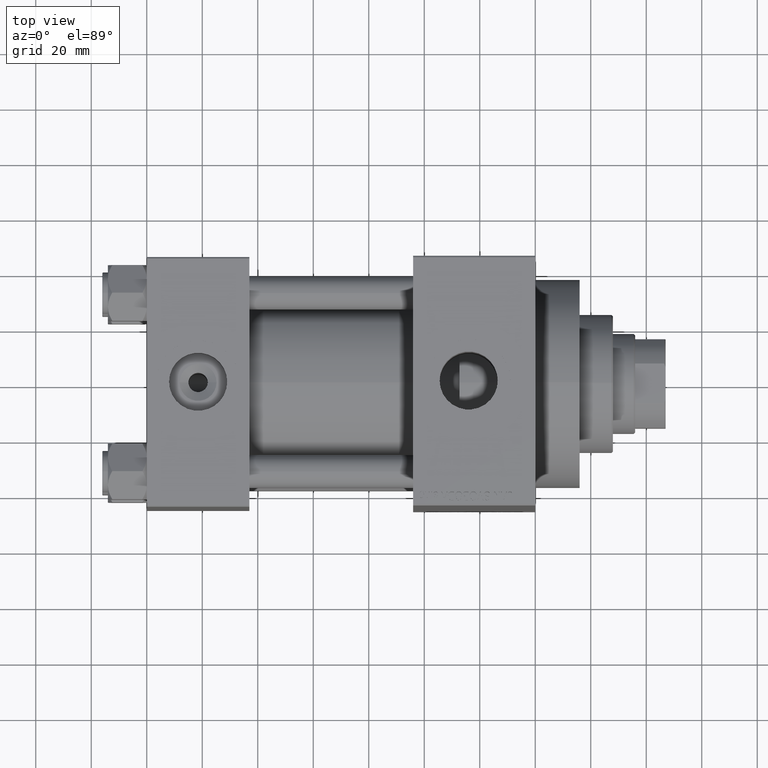
[diagram: clean part render]
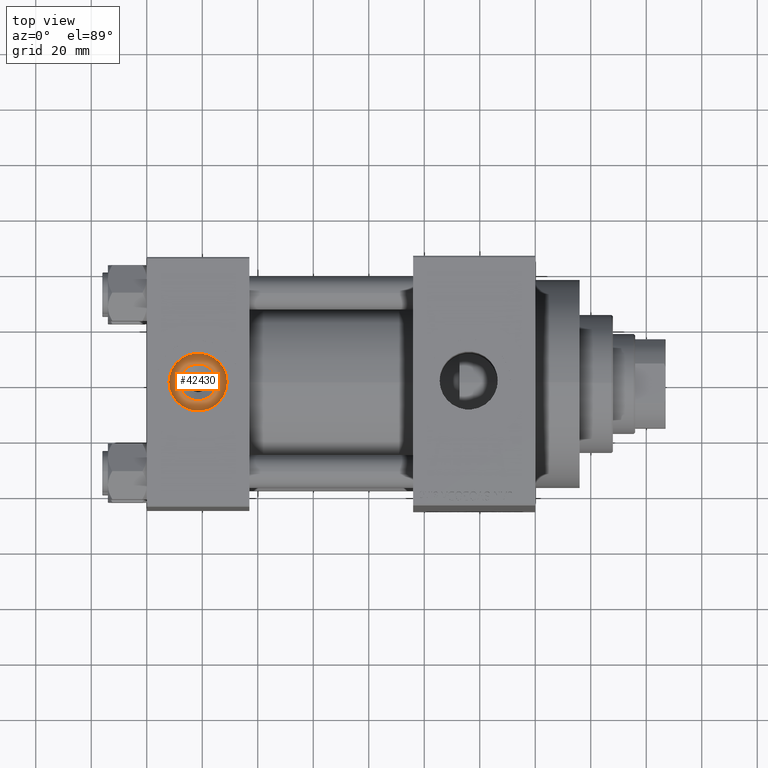
[diagram: same view with one face highlighted and labeled with its STEP entity id]
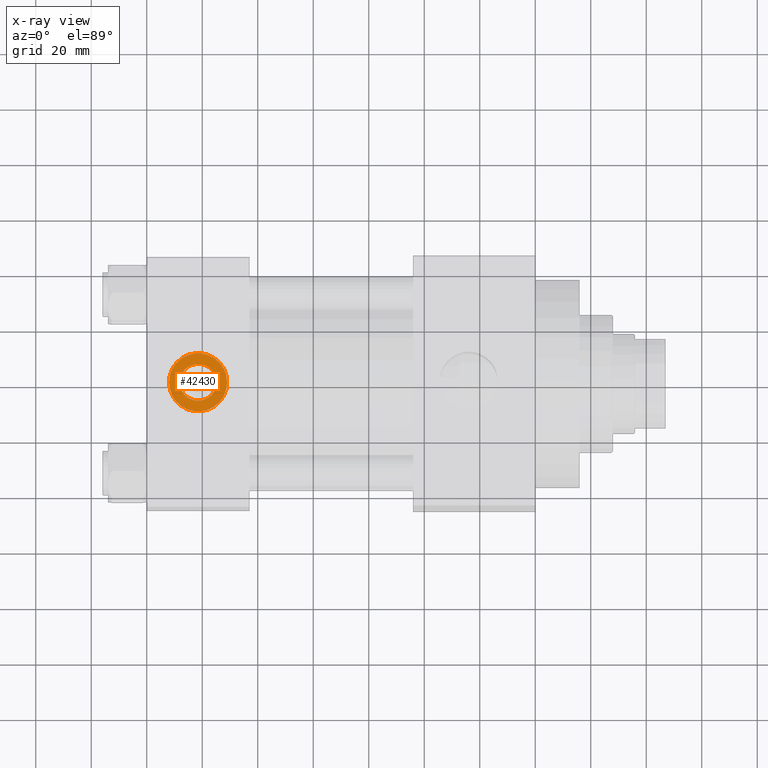
[diagram: x-ray of the same camera — body ghosted, the highlighted face saturated]
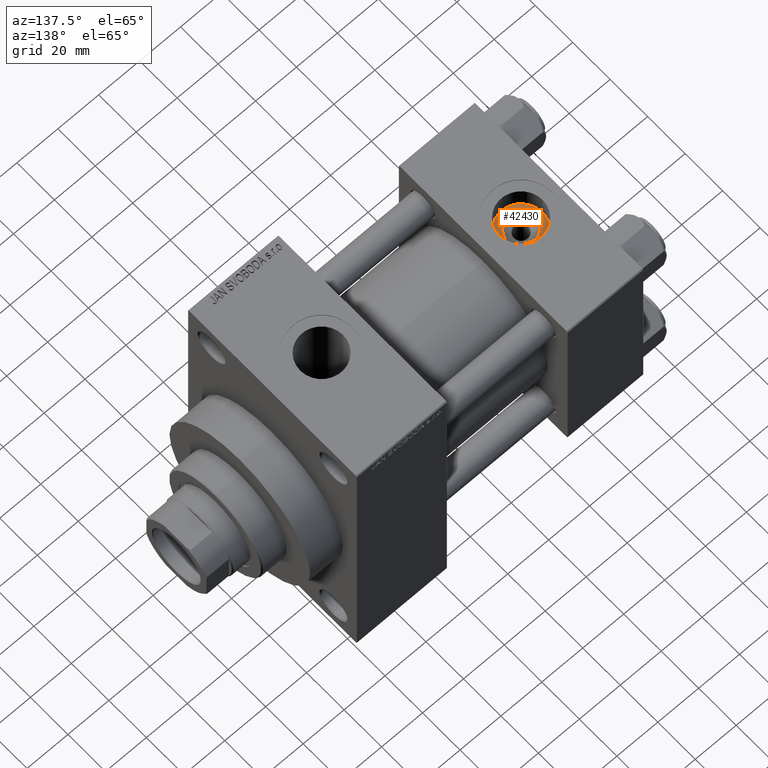
[diagram: same view with one face highlighted and labeled with its STEP entity id]
A machine part, top view. The second image highlights one B-rep face of the part: STEP entity #42430.
The next image is the same camera in x-ray: the body ghosted, the highlighted face saturated — about 0% of this face is hidden behind the body in this view.
A second angle (auxiliary view) of the same face is appended — the face is thin or edge-on in the first view.
In plain terms, the highlighted planar face has unit normal (0, 0, 1).
Its self-contained STEP definition (entity closure, byte-faithful):
#1944 = DIRECTION ( 'NONE',  ( 0.000000000000000000, 0.000000000000000000, 1.000000000000000000 ) ) ;
#3121 = EDGE_LOOP ( 'NONE', ( #43171, #17263 ) ) ;
#3904 = DIRECTION ( 'NONE',  ( 0.000000000000000000, 0.000000000000000000, 1.000000000000000000 ) ) ;
#3988 = AXIS2_PLACEMENT_3D ( 'NONE', #16298, #34681, #45683 ) ;
#4142 = FACE_BOUND ( 'NONE', #45755, .T. ) ;
#4421 = CARTESIAN_POINT ( 'NONE',  ( 28.98000000000000043, -1.214306433183764966E-14, 34.19999999999999574 ) ) ;
#5830 = EDGE_CURVE ( 'NONE', #18336, #39688, #46339, .T. ) ;
#8700 = CARTESIAN_POINT ( 'NONE',  ( 11.85999999999999233, -1.132989885720380676E-14, 34.19999999999999574 ) ) ;
#9555 = CARTESIAN_POINT ( 'NONE',  ( 18.50000000000000000, -1.214306433183764966E-14, 34.19999999999999574 ) ) ;
#9737 = AXIS2_PLACEMENT_3D ( 'NONE', #16500, #1944, #31072 ) ;
#13175 = CIRCLE ( 'NONE', #45961, 6.640000000000006786 ) ;
#13836 = DIRECTION ( 'NONE',  ( 1.000000000000000000, 0.000000000000000000, 0.000000000000000000 ) ) ;
#14470 = EDGE_CURVE ( 'NONE', #30240, #26020, #24575, .T. ) ;
#14788 = AXIS2_PLACEMENT_3D ( 'NONE', #33255, #3904, #18229 ) ;
#14859 = EDGE_CURVE ( 'NONE', #26020, #30240, #13175, .T. ) ;
#16298 = CARTESIAN_POINT ( 'NONE',  ( 18.50000000000000000, -1.214306433183764966E-14, 34.19999999999999574 ) ) ;
#16382 = DIRECTION ( 'NONE',  ( 0.000000000000000000, 0.000000000000000000, 1.000000000000000000 ) ) ;
#16500 = CARTESIAN_POINT ( 'NONE',  ( 18.50000000000000000, -1.214306433183764966E-14, 34.19999999999999574 ) ) ;
#17263 = ORIENTED_EDGE ( 'NONE', *, *, #33292, .T. ) ;
#18229 = DIRECTION ( 'NONE',  ( 1.000000000000000000, 0.000000000000000000, -0.000000000000000000 ) ) ;
#18336 = VERTEX_POINT ( 'NONE', #4421 ) ;
#18696 = PLANE ( 'NONE',  #14788 ) ;
#18831 = CIRCLE ( 'NONE', #29554, 10.48000000000000043 ) ;
#19022 = CARTESIAN_POINT ( 'NONE',  ( 18.50000000000000000, -1.214306433183764966E-14, 34.19999999999999574 ) ) ;
#22847 = ORIENTED_EDGE ( 'NONE', *, *, #14470, .T. ) ;
#24575 = CIRCLE ( 'NONE', #3988, 6.640000000000006786 ) ;
#24809 = DIRECTION ( 'NONE',  ( -0.000000000000000000, -0.000000000000000000, -1.000000000000000000 ) ) ;
#25628 = FACE_OUTER_BOUND ( 'NONE', #3121, .T. ) ;
#26020 = VERTEX_POINT ( 'NONE', #42553 ) ;
#29554 = AXIS2_PLACEMENT_3D ( 'NONE', #19022, #16382, #45521 ) ;
#30240 = VERTEX_POINT ( 'NONE', #8700 ) ;
#31072 = DIRECTION ( 'NONE',  ( 1.000000000000000000, 0.000000000000000000, 0.000000000000000000 ) ) ;
#31938 = ORIENTED_EDGE ( 'NONE', *, *, #14859, .T. ) ;
#33255 = CARTESIAN_POINT ( 'NONE',  ( 18.50000000000000000, -1.214306433183764966E-14, 34.19999999999999574 ) ) ;
#33292 = EDGE_CURVE ( 'NONE', #39688, #18336, #18831, .T. ) ;
#34681 = DIRECTION ( 'NONE',  ( -0.000000000000000000, -0.000000000000000000, -1.000000000000000000 ) ) ;
#39688 = VERTEX_POINT ( 'NONE', #42808 ) ;
#42430 = ADVANCED_FACE ( 'NONE', ( #4142, #25628 ), #18696, .T. ) ;
#42553 = CARTESIAN_POINT ( 'NONE',  ( 25.14000000000000767, -1.214306433183764966E-14, 34.19999999999999574 ) ) ;
#42808 = CARTESIAN_POINT ( 'NONE',  ( 8.019999999999999574, -1.085963448633122417E-14, 34.19999999999999574 ) ) ;
#43171 = ORIENTED_EDGE ( 'NONE', *, *, #5830, .T. ) ;
#45521 = DIRECTION ( 'NONE',  ( 1.000000000000000000, 0.000000000000000000, 0.000000000000000000 ) ) ;
#45683 = DIRECTION ( 'NONE',  ( 1.000000000000000000, 0.000000000000000000, 0.000000000000000000 ) ) ;
#45755 = EDGE_LOOP ( 'NONE', ( #31938, #22847 ) ) ;
#45961 = AXIS2_PLACEMENT_3D ( 'NONE', #9555, #24809, #13836 ) ;
#46339 = CIRCLE ( 'NONE', #9737, 10.48000000000000043 ) ;